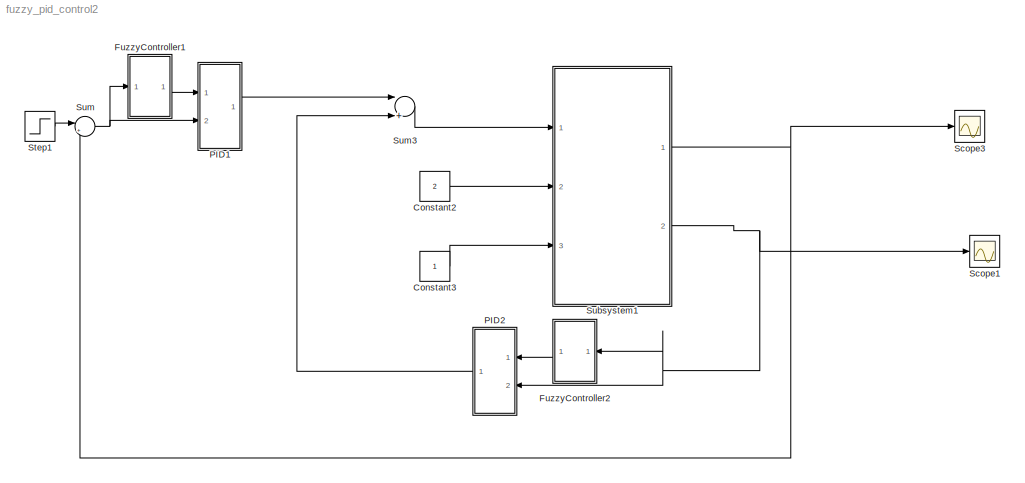
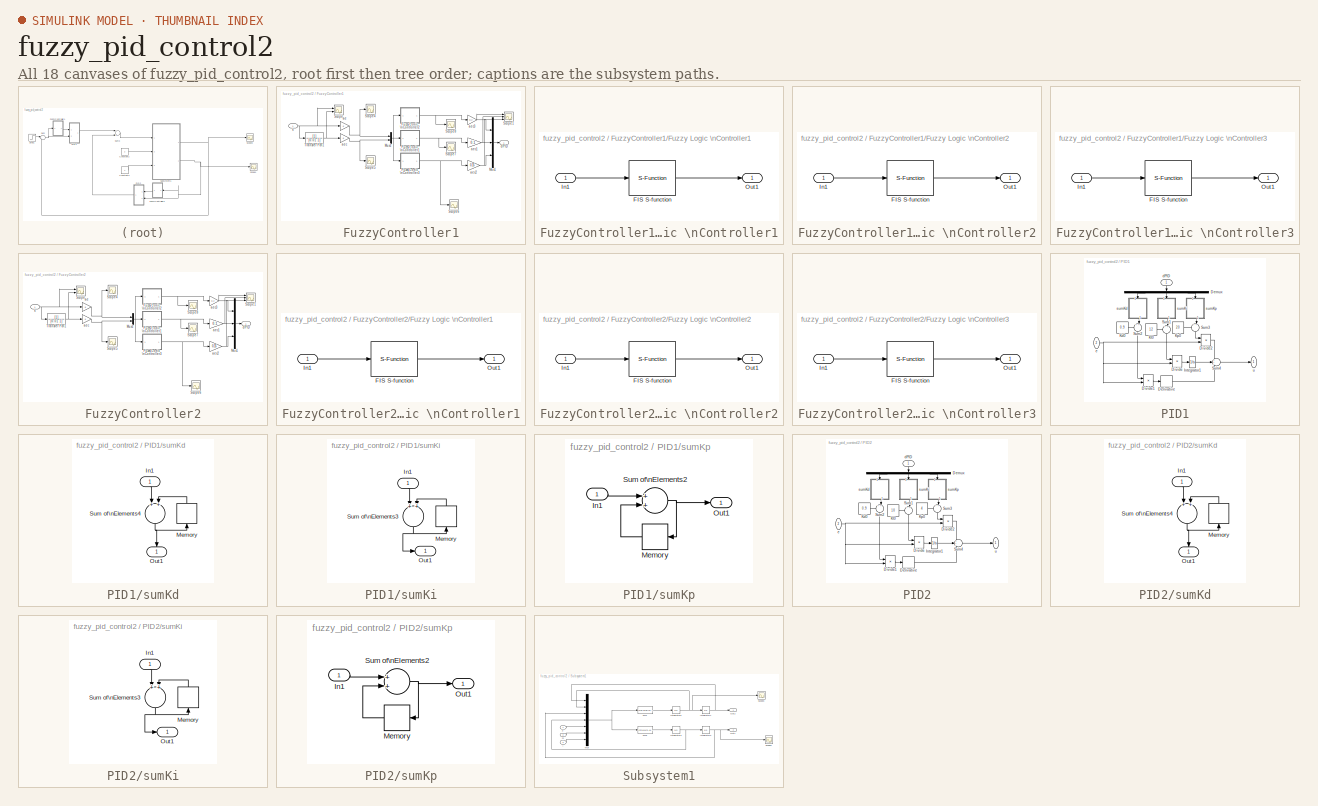
[diagram: thumbnail index - all 18 canvases of the model, root first then tree order]
MODEL fuzzy_pid_control2
KIND model
BLOCK [Constant] Constant2
  SID = 9
  Value = 2
BLOCK [Constant] Constant3
  SID = 10
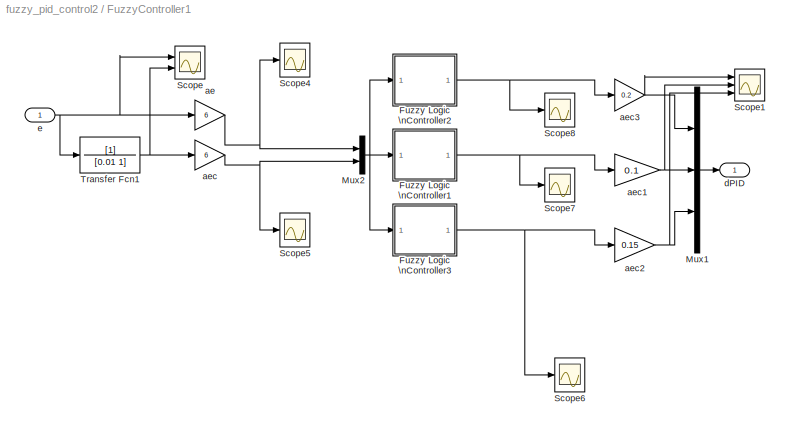
BLOCK [SubSystem] FuzzyController1
  Ports = [1, 1]
  RequestExecContextInheritance = off
  SID = 11
  Variant = off
BLOCK [SubSystem] FuzzyController1/Fuzzy Logic \nController1
  AncestorBlock = fuzblock/Fuzzy Logic \nController
  Ports = [1, 1]
  RequestExecContextInheritance = off
  SID = 13
  Variant = off
BLOCK [S-Function] FuzzyController1/Fuzzy Logic \nController1/FIS S-function
  EnableBusSupport = off
  FunctionName = sffis
  Parameters = fis
  Ports = [1, 1]
  SFunctionDeploymentMode = off
  SFunctionModules = sfsup
  SID = 13:2
BLOCK [Inport] FuzzyController1/Fuzzy Logic \nController1/In1
  IconDisplay = Port number
  SID = 13:1
BLOCK [Outport] FuzzyController1/Fuzzy Logic \nController1/Out1
  IconDisplay = Port number
  SID = 13:3
BLOCK [SubSystem] FuzzyController1/Fuzzy Logic \nController2
  AncestorBlock = fuzblock/Fuzzy Logic \nController
  Ports = [1, 1]
  RequestExecContextInheritance = off
  SID = 14
  Variant = off
BLOCK [S-Function] FuzzyController1/Fuzzy Logic \nController2/FIS S-function
  EnableBusSupport = off
  FunctionName = sffis
  Parameters = fis
  Ports = [1, 1]
  SFunctionDeploymentMode = off
  SFunctionModules = sfsup
  SID = 14:2
BLOCK [Inport] FuzzyController1/Fuzzy Logic \nController2/In1
  IconDisplay = Port number
  SID = 14:1
BLOCK [Outport] FuzzyController1/Fuzzy Logic \nController2/Out1
  IconDisplay = Port number
  SID = 14:3
BLOCK [SubSystem] FuzzyController1/Fuzzy Logic \nController3
  AncestorBlock = fuzblock/Fuzzy Logic \nController
  Ports = [1, 1]
  RequestExecContextInheritance = off
  SID = 15
  Variant = off
BLOCK [S-Function] FuzzyController1/Fuzzy Logic \nController3/FIS S-function
  EnableBusSupport = off
  FunctionName = sffis
  Parameters = fis
  Ports = [1, 1]
  SFunctionDeploymentMode = off
  SFunctionModules = sfsup
  SID = 15:2
BLOCK [Inport] FuzzyController1/Fuzzy Logic \nController3/In1
  IconDisplay = Port number
  SID = 15:1
BLOCK [Outport] FuzzyController1/Fuzzy Logic \nController3/Out1
  IconDisplay = Port number
  SID = 15:3
BLOCK [Mux] FuzzyController1/Mux1
  DisplayOption = bar
  Inputs = 3
  Ports = [3, 1]
  SID = 16
BLOCK [Mux] FuzzyController1/Mux2
  DisplayOption = bar
  Inputs = 2
  Ports = [2, 1]
  SID = 17
BLOCK [Scope] FuzzyController1/Scope
  NumInputPorts = 2
  Ports = [2]
  SID = 18
  ScopeSpecificationString = C++SS(StrPVP('Location','[5, 54, 1029, 746]'),StrPVP('Open','off'),StrPVP('ZoomMode','xonly'),MxPVP('AxesTitles',24,'struct(''axes1'',''%<SignalLabel>'',''axes2'',''%<SignalLabel>'')'),StrPVP('TimeRange','10              '),StrPVP('YMin','-0.0115~-0.012'),StrPVP('YMax','-0.0015~-0.0015'),StrPVP('SaveName','ScopeData10'),StrPVP('DataFormat','StructureWithTime'),StrPVP('LimitDataPoints','off'),StrPV...<+58ch>
BLOCK [Scope] FuzzyController1/Scope1
  NumInputPorts = 3
  Ports = [3]
  SID = 19
  ScopeSpecificationString = C++SS(StrPVP('Location','[1, 50, 1025, 737]'),StrPVP('Open','off'),StrPVP('ZoomMode','xonly'),MxPVP('AxesTitles',24,'struct(''axes1'',''%<SignalLabel>'',''axes2'',''%<SignalLabel>'',''axes3'',''%<SignalLabel>'')'),StrPVP('TimeRange','10'),StrPVP('YMin','-1~-0.5~-0.5'),StrPVP('YMax','1~0.5~0.5'),StrPVP('SaveName','ScopeData1'),StrPVP('DataFormat','StructureWithTime'),StrPVP('LimitDataPoints','off')...<+64ch>
BLOCK [Scope] FuzzyController1/Scope4
  Ports = [1]
  SID = 20
  ScopeSpecificationString = C++SS(StrPVP('Location','[1, 50, 1025, 737]'),StrPVP('Open','off'),StrPVP('ZoomMode','yonly'),MxPVP('AxesTitles',24,'struct(''axes1'',''%<SignalLabel>'')'),StrPVP('TimeRange','10              '),StrPVP('YMin','0.2'),StrPVP('YMax','1.3'),StrPVP('SaveName','ScopeData5'),StrPVP('DataFormat','StructureWithTime'),StrPVP('LimitDataPoints','off'),StrPVP('Decimation','1'),StrPVP('BlockParamSampleInput','o...<+5ch>
BLOCK [Scope] FuzzyController1/Scope5
  Ports = [1]
  SID = 21
  ScopeSpecificationString = C++SS(StrPVP('Location','[430, 92, 866, 334]'),StrPVP('Open','off'),StrPVP('ZoomMode','yonly'),MxPVP('AxesTitles',24,'struct(''axes1'',''%<SignalLabel>'')'),StrPVP('TimeRange','10              '),StrPVP('YMin','0.2'),StrPVP('YMax','1.3'),StrPVP('SaveName','ScopeData6'),StrPVP('DataFormat','StructureWithTime'),StrPVP('LimitDataPoints','off'),StrPVP('Decimation','1'),StrPVP('BlockParamSampleInput','...<+6ch>
BLOCK [Scope] FuzzyController1/Scope6
  Ports = [1]
  SID = 22
  ScopeSpecificationString = C++SS(StrPVP('Location','[1, 50, 1025, 737]'),StrPVP('Open','off'),StrPVP('ZoomMode','yonly'),MxPVP('AxesTitles',24,'struct(''axes1'',''%<SignalLabel>'')'),StrPVP('TimeRange','10              '),StrPVP('YMin','0.2'),StrPVP('YMax','1.3'),StrPVP('SaveName','ScopeData7'),StrPVP('DataFormat','StructureWithTime'),StrPVP('LimitDataPoints','off'),StrPVP('Decimation','1'),StrPVP('BlockParamSampleInput','o...<+5ch>
BLOCK [Scope] FuzzyController1/Scope7
  Ports = [1]
  SID = 23
  ScopeSpecificationString = C++SS(StrPVP('Location','[463, 209, 899, 451]'),StrPVP('Open','off'),StrPVP('ZoomMode','yonly'),MxPVP('AxesTitles',24,'struct(''axes1'',''%<SignalLabel>'')'),StrPVP('TimeRange','10              '),StrPVP('YMin','0.2'),StrPVP('YMax','1.3'),StrPVP('SaveName','ScopeData8'),StrPVP('DataFormat','StructureWithTime'),StrPVP('LimitDataPoints','off'),StrPVP('Decimation','1'),StrPVP('BlockParamSampleInput',...<+7ch>
BLOCK [Scope] FuzzyController1/Scope8
  Ports = [1]
  SID = 24
  ScopeSpecificationString = C++SS(StrPVP('Location','[1, 50, 1025, 737]'),StrPVP('Open','off'),StrPVP('ZoomMode','yonly'),MxPVP('AxesTitles',24,'struct(''axes1'',''%<SignalLabel>'')'),StrPVP('TimeRange','10              '),StrPVP('YMin','0.2'),StrPVP('YMax','1.3'),StrPVP('SaveName','ScopeData9'),StrPVP('DataFormat','StructureWithTime'),StrPVP('LimitDataPoints','off'),StrPVP('Decimation','1'),StrPVP('BlockParamSampleInput','o...<+5ch>
BLOCK [TransferFcn] FuzzyController1/Transfer Fcn1
  Denominator = [0.01 1]
  SID = 25
BLOCK [Gain] FuzzyController1/ae
  Gain = 6
  OutDataTypeStr = Inherit: Inherit via internal rule
  ParamDataTypeStr = Inherit: Inherit via internal rule
  SID = 26
  SaturateOnIntegerOverflow = off
BLOCK [Gain] FuzzyController1/aec
  Gain = 6
  OutDataTypeStr = Inherit: Inherit via internal rule
  ParamDataTypeStr = Inherit: Inherit via internal rule
  SID = 27
  SaturateOnIntegerOverflow = off
BLOCK [Gain] FuzzyController1/aec1
  Gain = 0.1
  OutDataTypeStr = Inherit: Inherit via internal rule
  ParamDataTypeStr = Inherit: Inherit via internal rule
  SID = 28
  SaturateOnIntegerOverflow = off
BLOCK [Gain] FuzzyController1/aec2
  Gain = 0.15
  OutDataTypeStr = Inherit: Inherit via internal rule
  ParamDataTypeStr = Inherit: Inherit via internal rule
  SID = 29
  SaturateOnIntegerOverflow = off
BLOCK [Gain] FuzzyController1/aec3
  Gain = 0.2
  OutDataTypeStr = Inherit: Inherit via internal rule
  ParamDataTypeStr = Inherit: Inherit via internal rule
  SID = 30
  SaturateOnIntegerOverflow = off
BLOCK [Outport] FuzzyController1/dPID
  IconDisplay = Port number
  SID = 31
BLOCK [Inport] FuzzyController1/e
  IconDisplay = Port number
  SID = 12
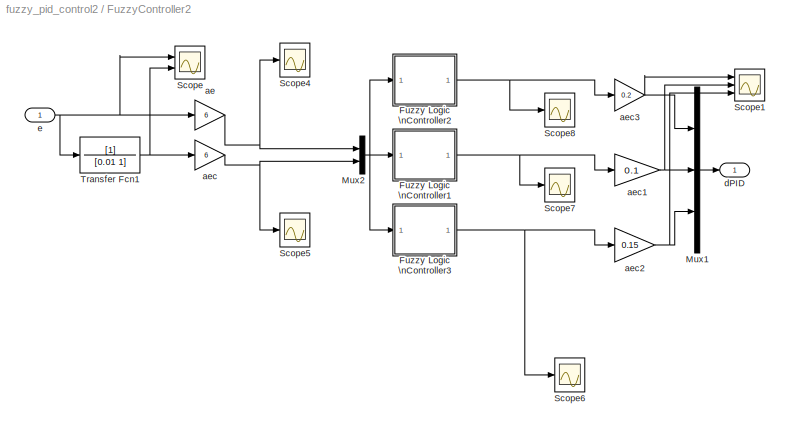
BLOCK [SubSystem] FuzzyController2
  Ports = [1, 1]
  RequestExecContextInheritance = off
  SID = 99
  Variant = off
BLOCK [SubSystem] FuzzyController2/Fuzzy Logic \nController1
  AncestorBlock = fuzblock/Fuzzy Logic \nController
  Ports = [1, 1]
  RequestExecContextInheritance = off
  SID = 101
  Variant = off
BLOCK [S-Function] FuzzyController2/Fuzzy Logic \nController1/FIS S-function
  EnableBusSupport = off
  FunctionName = sffis
  Parameters = fis
  Ports = [1, 1]
  SFunctionDeploymentMode = off
  SFunctionModules = sfsup
  SID = 101:2
BLOCK [Inport] FuzzyController2/Fuzzy Logic \nController1/In1
  IconDisplay = Port number
  SID = 101:1
BLOCK [Outport] FuzzyController2/Fuzzy Logic \nController1/Out1
  IconDisplay = Port number
  SID = 101:3
BLOCK [SubSystem] FuzzyController2/Fuzzy Logic \nController2
  AncestorBlock = fuzblock/Fuzzy Logic \nController
  Ports = [1, 1]
  RequestExecContextInheritance = off
  SID = 102
  Variant = off
BLOCK [S-Function] FuzzyController2/Fuzzy Logic \nController2/FIS S-function
  EnableBusSupport = off
  FunctionName = sffis
  Parameters = fis
  Ports = [1, 1]
  SFunctionDeploymentMode = off
  SFunctionModules = sfsup
  SID = 102:2
BLOCK [Inport] FuzzyController2/Fuzzy Logic \nController2/In1
  IconDisplay = Port number
  SID = 102:1
BLOCK [Outport] FuzzyController2/Fuzzy Logic \nController2/Out1
  IconDisplay = Port number
  SID = 102:3
BLOCK [SubSystem] FuzzyController2/Fuzzy Logic \nController3
  AncestorBlock = fuzblock/Fuzzy Logic \nController
  Ports = [1, 1]
  RequestExecContextInheritance = off
  SID = 103
  Variant = off
BLOCK [S-Function] FuzzyController2/Fuzzy Logic \nController3/FIS S-function
  EnableBusSupport = off
  FunctionName = sffis
  Parameters = fis
  Ports = [1, 1]
  SFunctionDeploymentMode = off
  SFunctionModules = sfsup
  SID = 103:2
BLOCK [Inport] FuzzyController2/Fuzzy Logic \nController3/In1
  IconDisplay = Port number
  SID = 103:1
BLOCK [Outport] FuzzyController2/Fuzzy Logic \nController3/Out1
  IconDisplay = Port number
  SID = 103:3
BLOCK [Mux] FuzzyController2/Mux1
  DisplayOption = bar
  Inputs = 3
  Ports = [3, 1]
  SID = 104
BLOCK [Mux] FuzzyController2/Mux2
  DisplayOption = bar
  Inputs = 2
  Ports = [2, 1]
  SID = 105
BLOCK [Scope] FuzzyController2/Scope
  NumInputPorts = 2
  Ports = [2]
  SID = 106
  ScopeSpecificationString = C++SS(StrPVP('Location','[5, 54, 1029, 746]'),StrPVP('Open','off'),StrPVP('ZoomMode','xonly'),MxPVP('AxesTitles',24,'struct(''axes1'',''%<SignalLabel>'',''axes2'',''%<SignalLabel>'')'),StrPVP('TimeRange','10              '),StrPVP('YMin','-0.0115~-0.012'),StrPVP('YMax','-0.0015~-0.0015'),StrPVP('SaveName','ScopeData10'),StrPVP('DataFormat','StructureWithTime'),StrPVP('LimitDataPoints','off'),StrPV...<+58ch>
BLOCK [Scope] FuzzyController2/Scope1
  NumInputPorts = 3
  Ports = [3]
  SID = 107
  ScopeSpecificationString = C++SS(StrPVP('Location','[1, 50, 1025, 737]'),StrPVP('Open','off'),StrPVP('ZoomMode','xonly'),MxPVP('AxesTitles',24,'struct(''axes1'',''%<SignalLabel>'',''axes2'',''%<SignalLabel>'',''axes3'',''%<SignalLabel>'')'),StrPVP('TimeRange','10'),StrPVP('YMin','-1~-0.5~-0.5'),StrPVP('YMax','1~0.5~0.5'),StrPVP('SaveName','ScopeData1'),StrPVP('DataFormat','StructureWithTime'),StrPVP('LimitDataPoints','off')...<+64ch>
BLOCK [Scope] FuzzyController2/Scope4
  Ports = [1]
  SID = 108
  ScopeSpecificationString = C++SS(StrPVP('Location','[1, 50, 1025, 737]'),StrPVP('Open','off'),StrPVP('ZoomMode','yonly'),MxPVP('AxesTitles',24,'struct(''axes1'',''%<SignalLabel>'')'),StrPVP('TimeRange','10              '),StrPVP('YMin','0.2'),StrPVP('YMax','1.3'),StrPVP('SaveName','ScopeData5'),StrPVP('DataFormat','StructureWithTime'),StrPVP('LimitDataPoints','off'),StrPVP('Decimation','1'),StrPVP('BlockParamSampleInput','o...<+5ch>
BLOCK [Scope] FuzzyController2/Scope5
  Ports = [1]
  SID = 109
  ScopeSpecificationString = C++SS(StrPVP('Location','[430, 92, 866, 334]'),StrPVP('Open','off'),StrPVP('ZoomMode','yonly'),MxPVP('AxesTitles',24,'struct(''axes1'',''%<SignalLabel>'')'),StrPVP('TimeRange','10              '),StrPVP('YMin','0.2'),StrPVP('YMax','1.3'),StrPVP('SaveName','ScopeData6'),StrPVP('DataFormat','StructureWithTime'),StrPVP('LimitDataPoints','off'),StrPVP('Decimation','1'),StrPVP('BlockParamSampleInput','...<+6ch>
BLOCK [Scope] FuzzyController2/Scope6
  Ports = [1]
  SID = 110
  ScopeSpecificationString = C++SS(StrPVP('Location','[1, 50, 1025, 737]'),StrPVP('Open','off'),StrPVP('ZoomMode','yonly'),MxPVP('AxesTitles',24,'struct(''axes1'',''%<SignalLabel>'')'),StrPVP('TimeRange','10              '),StrPVP('YMin','0.2'),StrPVP('YMax','1.3'),StrPVP('SaveName','ScopeData7'),StrPVP('DataFormat','StructureWithTime'),StrPVP('LimitDataPoints','off'),StrPVP('Decimation','1'),StrPVP('BlockParamSampleInput','o...<+5ch>
BLOCK [Scope] FuzzyController2/Scope7
  Ports = [1]
  SID = 111
  ScopeSpecificationString = C++SS(StrPVP('Location','[463, 209, 899, 451]'),StrPVP('Open','off'),StrPVP('ZoomMode','yonly'),MxPVP('AxesTitles',24,'struct(''axes1'',''%<SignalLabel>'')'),StrPVP('TimeRange','10              '),StrPVP('YMin','0.2'),StrPVP('YMax','1.3'),StrPVP('SaveName','ScopeData8'),StrPVP('DataFormat','StructureWithTime'),StrPVP('LimitDataPoints','off'),StrPVP('Decimation','1'),StrPVP('BlockParamSampleInput',...<+7ch>
BLOCK [Scope] FuzzyController2/Scope8
  Ports = [1]
  SID = 112
  ScopeSpecificationString = C++SS(StrPVP('Location','[1, 50, 1025, 737]'),StrPVP('Open','off'),StrPVP('ZoomMode','yonly'),MxPVP('AxesTitles',24,'struct(''axes1'',''%<SignalLabel>'')'),StrPVP('TimeRange','10              '),StrPVP('YMin','0.2'),StrPVP('YMax','1.3'),StrPVP('SaveName','ScopeData9'),StrPVP('DataFormat','StructureWithTime'),StrPVP('LimitDataPoints','off'),StrPVP('Decimation','1'),StrPVP('BlockParamSampleInput','o...<+5ch>
BLOCK [TransferFcn] FuzzyController2/Transfer Fcn1
  Denominator = [0.01 1]
  SID = 113
BLOCK [Gain] FuzzyController2/ae
  Gain = 6
  OutDataTypeStr = Inherit: Inherit via internal rule
  ParamDataTypeStr = Inherit: Inherit via internal rule
  SID = 114
  SaturateOnIntegerOverflow = off
BLOCK [Gain] FuzzyController2/aec
  Gain = 6
  OutDataTypeStr = Inherit: Inherit via internal rule
  ParamDataTypeStr = Inherit: Inherit via internal rule
  SID = 115
  SaturateOnIntegerOverflow = off
BLOCK [Gain] FuzzyController2/aec1
  Gain = 0.1
  OutDataTypeStr = Inherit: Inherit via internal rule
  ParamDataTypeStr = Inherit: Inherit via internal rule
  SID = 116
  SaturateOnIntegerOverflow = off
BLOCK [Gain] FuzzyController2/aec2
  Gain = 0.15
  OutDataTypeStr = Inherit: Inherit via internal rule
  ParamDataTypeStr = Inherit: Inherit via internal rule
  SID = 117
  SaturateOnIntegerOverflow = off
BLOCK [Gain] FuzzyController2/aec3
  Gain = 0.2
  OutDataTypeStr = Inherit: Inherit via internal rule
  ParamDataTypeStr = Inherit: Inherit via internal rule
  SID = 118
  SaturateOnIntegerOverflow = off
BLOCK [Outport] FuzzyController2/dPID
  IconDisplay = Port number
  SID = 119
BLOCK [Inport] FuzzyController2/e
  IconDisplay = Port number
  SID = 100
BLOCK [SubSystem] PID1
  Ports = [2, 1]
  RequestExecContextInheritance = off
  SID = 45
  Variant = off
BLOCK [Demux] PID1/Demux
  DisplayOption = bar
  Outputs = 3
  Ports = [1, 3]
  SID = 48
BLOCK [Derivative] PID1/Derivative
  SID = 49
BLOCK [Product] PID1/Divide
  InputSameDT = off
  Inputs = **
  OutDataTypeStr = Inherit: Inherit via internal rule
  Ports = [2, 1]
  RndMeth = Floor
  SID = 50
  SaturateOnIntegerOverflow = off
BLOCK [Product] PID1/Divide1
  InputSameDT = off
  Inputs = **
  OutDataTypeStr = Inherit: Inherit via internal rule
  Ports = [2, 1]
  RndMeth = Floor
  SID = 51
  SaturateOnIntegerOverflow = off
BLOCK [Product] PID1/Divide2
  InputSameDT = off
  Inputs = **
  OutDataTypeStr = Inherit: Inherit via internal rule
  Ports = [2, 1]
  RndMeth = Floor
  SID = 52
  SaturateOnIntegerOverflow = off
BLOCK [Integrator] PID1/Integrator1
  Ports = [1, 1]
  SID = 53
BLOCK [Constant] PID1/KI0
  SID = 54
  Value = 12
BLOCK [Constant] PID1/Kd0
  SID = 55
  Value = 0.9
BLOCK [Constant] PID1/Kp0
  SID = 56
  Value = 20
BLOCK [Sum] PID1/Sum1
  IconShape = round
  InputSameDT = off
  Inputs = ++|
  OutDataTypeStr = Inherit: Inherit via internal rule
  Ports = [2, 1]
  SID = 57
  SaturateOnIntegerOverflow = off
BLOCK [Sum] PID1/Sum2
  IconShape = round
  InputSameDT = off
  Inputs = ++|
  OutDataTypeStr = Inherit: Inherit via internal rule
  Ports = [2, 1]
  SID = 58
  SaturateOnIntegerOverflow = off
BLOCK [Sum] PID1/Sum3
  IconShape = round
  InputSameDT = off
  Inputs = ++|
  OutDataTypeStr = Inherit: Inherit via internal rule
  Ports = [2, 1]
  SID = 59
  SaturateOnIntegerOverflow = off
BLOCK [Sum] PID1/Sum4
  IconShape = round
  InputSameDT = off
  Inputs = +++
  OutDataTypeStr = Inherit: Inherit via internal rule
  Ports = [3, 1]
  SID = 60
  SaturateOnIntegerOverflow = off
BLOCK [Inport] PID1/dPID
  IconDisplay = Port number
  SID = 46
BLOCK [Inport] PID1/e
  IconDisplay = Port number
  Port = 2
  SID = 47
BLOCK [SubSystem] PID1/sumKd
  Ports = [1, 1]
  RequestExecContextInheritance = off
  SID = 61
  Variant = off
BLOCK [Inport] PID1/sumKd/In1
  IconDisplay = Port number
  SID = 62
BLOCK [Memory] PID1/sumKd/Memory
  InheritSampleTime = on
  SID = 63
BLOCK [Outport] PID1/sumKd/Out1
  IconDisplay = Port number
  SID = 65
BLOCK [Sum] PID1/sumKd/Sum of\nElements4
  InputSameDT = off
  OutDataTypeStr = Inherit: Inherit via internal rule
  Ports = [2, 1]
  SID = 64
  SampleTime = 0.001
  SaturateOnIntegerOverflow = off
BLOCK [SubSystem] PID1/sumKi
  Ports = [1, 1]
  RequestExecContextInheritance = off
  SID = 66
  Variant = off
BLOCK [Inport] PID1/sumKi/In1
  IconDisplay = Port number
  SID = 67
BLOCK [Memory] PID1/sumKi/Memory
  InheritSampleTime = on
  SID = 68
BLOCK [Outport] PID1/sumKi/Out1
  IconDisplay = Port number
  SID = 70
BLOCK [Sum] PID1/sumKi/Sum of\nElements3
  InputSameDT = off
  OutDataTypeStr = Inherit: Inherit via internal rule
  Ports = [2, 1]
  SID = 69
  SampleTime = 0.001
  SaturateOnIntegerOverflow = off
BLOCK [SubSystem] PID1/sumKp
  Ports = [1, 1]
  RequestExecContextInheritance = off
  SID = 71
  Variant = off
BLOCK [Inport] PID1/sumKp/In1
  IconDisplay = Port number
  SID = 72
BLOCK [Memory] PID1/sumKp/Memory
  InheritSampleTime = on
  SID = 73
BLOCK [Outport] PID1/sumKp/Out1
  IconDisplay = Port number
  SID = 75
BLOCK [Sum] PID1/sumKp/Sum of\nElements2
  InputSameDT = off
  OutDataTypeStr = Inherit: Inherit via internal rule
  Ports = [2, 1]
  SID = 74
  SampleTime = 0.001
  SaturateOnIntegerOverflow = off
BLOCK [Outport] PID1/u
  IconDisplay = Port number
  SID = 76
BLOCK [SubSystem] PID2
  Ports = [2, 1]
  RequestExecContextInheritance = off
  SID = 120
  Variant = off
BLOCK [Demux] PID2/Demux
  DisplayOption = bar
  Outputs = 3
  Ports = [1, 3]
  SID = 123
BLOCK [Derivative] PID2/Derivative
  SID = 124
BLOCK [Product] PID2/Divide
  InputSameDT = off
  Inputs = **
  OutDataTypeStr = Inherit: Inherit via internal rule
  Ports = [2, 1]
  RndMeth = Floor
  SID = 125
  SaturateOnIntegerOverflow = off
BLOCK [Product] PID2/Divide1
  InputSameDT = off
  Inputs = **
  OutDataTypeStr = Inherit: Inherit via internal rule
  Ports = [2, 1]
  RndMeth = Floor
  SID = 126
  SaturateOnIntegerOverflow = off
BLOCK [Product] PID2/Divide2
  InputSameDT = off
  Inputs = **
  OutDataTypeStr = Inherit: Inherit via internal rule
  Ports = [2, 1]
  RndMeth = Floor
  SID = 127
  SaturateOnIntegerOverflow = off
BLOCK [Integrator] PID2/Integrator1
  Ports = [1, 1]
  SID = 128
BLOCK [Constant] PID2/KI0
  SID = 129
  Value = 10
BLOCK [Constant] PID2/Kd0
  SID = 130
  Value = 0.9
BLOCK [Constant] PID2/Kp0
  SID = 131
  Value = 4
BLOCK [Sum] PID2/Sum1
  IconShape = round
  InputSameDT = off
  Inputs = ++|
  OutDataTypeStr = Inherit: Inherit via internal rule
  Ports = [2, 1]
  SID = 132
  SaturateOnIntegerOverflow = off
BLOCK [Sum] PID2/Sum2
  IconShape = round
  InputSameDT = off
  Inputs = ++|
  OutDataTypeStr = Inherit: Inherit via internal rule
  Ports = [2, 1]
  SID = 133
  SaturateOnIntegerOverflow = off
BLOCK [Sum] PID2/Sum3
  IconShape = round
  InputSameDT = off
  Inputs = ++|
  OutDataTypeStr = Inherit: Inherit via internal rule
  Ports = [2, 1]
  SID = 134
  SaturateOnIntegerOverflow = off
BLOCK [Sum] PID2/Sum4
  IconShape = round
  InputSameDT = off
  Inputs = +++
  OutDataTypeStr = Inherit: Inherit via internal rule
  Ports = [3, 1]
  SID = 135
  SaturateOnIntegerOverflow = off
BLOCK [Inport] PID2/dPID
  IconDisplay = Port number
  SID = 121
BLOCK [Inport] PID2/e
  IconDisplay = Port number
  Port = 2
  SID = 122
BLOCK [SubSystem] PID2/sumKd
  Ports = [1, 1]
  RequestExecContextInheritance = off
  SID = 136
  Variant = off
BLOCK [Inport] PID2/sumKd/In1
  IconDisplay = Port number
  SID = 137
BLOCK [Memory] PID2/sumKd/Memory
  InheritSampleTime = on
  SID = 138
BLOCK [Outport] PID2/sumKd/Out1
  IconDisplay = Port number
  SID = 140
BLOCK [Sum] PID2/sumKd/Sum of\nElements4
  InputSameDT = off
  OutDataTypeStr = Inherit: Inherit via internal rule
  Ports = [2, 1]
  SID = 139
  SampleTime = 0.001
  SaturateOnIntegerOverflow = off
BLOCK [SubSystem] PID2/sumKi
  Ports = [1, 1]
  RequestExecContextInheritance = off
  SID = 141
  Variant = off
BLOCK [Inport] PID2/sumKi/In1
  IconDisplay = Port number
  SID = 142
BLOCK [Memory] PID2/sumKi/Memory
  InheritSampleTime = on
  SID = 143
BLOCK [Outport] PID2/sumKi/Out1
  IconDisplay = Port number
  SID = 145
BLOCK [Sum] PID2/sumKi/Sum of\nElements3
  InputSameDT = off
  OutDataTypeStr = Inherit: Inherit via internal rule
  Ports = [2, 1]
  SID = 144
  SampleTime = 0.001
  SaturateOnIntegerOverflow = off
BLOCK [SubSystem] PID2/sumKp
  Ports = [1, 1]
  RequestExecContextInheritance = off
  SID = 146
  Variant = off
BLOCK [Inport] PID2/sumKp/In1
  IconDisplay = Port number
  SID = 147
BLOCK [Memory] PID2/sumKp/Memory
  InheritSampleTime = on
  SID = 148
BLOCK [Outport] PID2/sumKp/Out1
  IconDisplay = Port number
  SID = 150
BLOCK [Sum] PID2/sumKp/Sum of\nElements2
  InputSameDT = off
  OutDataTypeStr = Inherit: Inherit via internal rule
  Ports = [2, 1]
  SID = 149
  SampleTime = 0.001
  SaturateOnIntegerOverflow = off
BLOCK [Outport] PID2/u
  IconDisplay = Port number
  SID = 151
BLOCK [Scope] Scope1
  Ports = [1]
  SID = 77
  ScopeSpecificationString = Simulink.scopes.TimeScopeBlockCfg('CurrentConfiguration', extmgr.ConfigurationSet(extmgr.Configuration('Core','General UI',true,'FigureColor',[1 1 1]),extmgr.Configuration('Core','Source UI',true),extmgr.Configuration('Sources','WiredSimulink',true,'DataLoggingVariableName','ScopeData3','DataLoggingLimitDataPoints',true,'DataLoggingSaveFormat','Array','DataLoggingDecimation','1','DataLoggingDecima...<+1720ch>
BLOCK [Scope] Scope3
  Ports = [1]
  SID = 78
  ScopeSpecificationString = Simulink.scopes.TimeScopeBlockCfg('CurrentConfiguration', extmgr.ConfigurationSet(extmgr.Configuration('Core','General UI',true),extmgr.Configuration('Core','Source UI',true),extmgr.Configuration('Sources','WiredSimulink',true,'DataLoggingVariableName','ScopeData1'),extmgr.Configuration('Visuals','Time Domain',true,'SerializedDisplays',{struct('MinYLimReal','-0.14858','MaxYLimReal','1.33719','YLab...<+1398ch>
BLOCK [Step] Step1
  SID = 79
  SampleTime = 0
  Time = 0
BLOCK [SubSystem] Subsystem1
  Ports = [3, 2]
  RequestExecContextInheritance = off
  SID = 80
  Variant = off
BLOCK [Inport] Subsystem1/F
  IconDisplay = Port number
  SID = 81
BLOCK [Fcn] Subsystem1/Fcn1
  Expr = (u(5)+u(6)*u(7)*u(4)*u(4)*sin(u(3))+9.8*u(6)*sin(u(3))-miu*u(2))/(M+u(6)-u(6)*cos(u(3)))
  SID = 84
BLOCK [Fcn] Subsystem1/Fcn3
  Expr = ((miu*u(2)-u(5))*u(7)*cos(u(3))-(u(7)*u(7)*u(4)*u(4)+9.8*u(7)*9.8)*u(6)*sin(u(3))*cos(u(3))-(M+u(6))*9.8*sin(u(3)))/((M+u(6)-u(6)*cos(u(3)))*u(7))
  SID = 85
BLOCK [Integrator] Subsystem1/Integrator1
  Ports = [1, 1]
  SID = 86
BLOCK [Integrator] Subsystem1/Integrator2
  Ports = [1, 1]
  SID = 87
BLOCK [Integrator] Subsystem1/Integrator3
  Ports = [1, 1]
  SID = 88
BLOCK [Integrator] Subsystem1/Integrator5
  Ports = [1, 1]
  SID = 89
BLOCK [Mux] Subsystem1/Mux
  DisplayOption = bar
  Inputs = 7
  Ports = [7, 1]
  SID = 90
BLOCK [Outport] Subsystem1/Out1
  IconDisplay = Port number
  Port = 2
  SID = 94
BLOCK [Outport] Subsystem1/Out2
  IconDisplay = Port number
  SID = 93
BLOCK [Scope] Subsystem1/Scope1
  Ports = [1]
  SID = 91
  ScopeSpecificationString = Simulink.scopes.TimeScopeBlockCfg('CurrentConfiguration', extmgr.ConfigurationSet(extmgr.Configuration('Core','General UI',true),extmgr.Configuration('Core','Source UI',true),extmgr.Configuration('Sources','WiredSimulink',true,'DataLoggingVariableName','ScopeData2','DataLoggingSaveFormat','StructureWithTime','DataLoggingDecimation','1','DataLoggingDecimateData',true),extmgr.Configuration('Visuals'...<+1648ch>
BLOCK [Scope] Subsystem1/Scope3
  Ports = [1]
  SID = 92
  ScopeSpecificationString = Simulink.scopes.TimeScopeBlockCfg('CurrentConfiguration', extmgr.ConfigurationSet(extmgr.Configuration('Core','General UI',true),extmgr.Configuration('Core','Source UI',true),extmgr.Configuration('Sources','WiredSimulink',true,'DataLoggingVariableName','ScopeData1','DataLoggingSaveFormat','StructureWithTime','DataLoggingDecimation','1','DataLoggingDecimateData',true),extmgr.Configuration('Visuals'...<+1732ch>
BLOCK [Inport] Subsystem1/l
  IconDisplay = Port number
  Port = 3
  SID = 83
BLOCK [Inport] Subsystem1/m
  IconDisplay = Port number
  Port = 2
  SID = 82
BLOCK [Sum] Sum
  IconShape = round
  InputSameDT = off
  Inputs = |+-
  OutDataTypeStr = Inherit: Inherit via internal rule
  Ports = [2, 1]
  SID = 95
  SaturateOnIntegerOverflow = off
BLOCK [Sum] Sum3
  InputSameDT = off
  Inputs = |++
  OutDataTypeStr = Inherit: Inherit via internal rule
  Ports = [2, 1]
  SID = 96
  SaturateOnIntegerOverflow = off
LINE Constant2:1 -> Subsystem1:2
LINE Constant3:1 -> Subsystem1:3
LINE FuzzyController1/Fuzzy Logic \nController1/FIS S-function:1 -> FuzzyController1/Fuzzy Logic \nController1/Out1:1
LINE FuzzyController1/Fuzzy Logic \nController1/In1:1 -> FuzzyController1/Fuzzy Logic \nController1/FIS S-function:1
NET FuzzyController1/Fuzzy Logic \nController1:1 -> FuzzyController1/Scope7:1, FuzzyController1/aec1:1
LINE FuzzyController1/Fuzzy Logic \nController2/FIS S-function:1 -> FuzzyController1/Fuzzy Logic \nController2/Out1:1
LINE FuzzyController1/Fuzzy Logic \nController2/In1:1 -> FuzzyController1/Fuzzy Logic \nController2/FIS S-function:1
NET FuzzyController1/Fuzzy Logic \nController2:1 -> FuzzyController1/Scope8:1, FuzzyController1/aec3:1
LINE FuzzyController1/Fuzzy Logic \nController3/FIS S-function:1 -> FuzzyController1/Fuzzy Logic \nController3/Out1:1
LINE FuzzyController1/Fuzzy Logic \nController3/In1:1 -> FuzzyController1/Fuzzy Logic \nController3/FIS S-function:1
NET FuzzyController1/Fuzzy Logic \nController3:1 -> FuzzyController1/Scope6:1, FuzzyController1/aec2:1
LINE FuzzyController1/Mux1:1 -> FuzzyController1/dPID:1
NET FuzzyController1/Mux2:1 -> FuzzyController1/Fuzzy Logic \nController1:1, FuzzyController1/Fuzzy Logic \nController2:1, FuzzyController1/Fuzzy Logic \nController3:1
NET FuzzyController1/Transfer Fcn1:1 -> FuzzyController1/Scope:2, FuzzyController1/aec:1
NET FuzzyController1/ae:1 -> FuzzyController1/Mux2:1, FuzzyController1/Scope4:1
NET FuzzyController1/aec1:1 -> FuzzyController1/Mux1:2, FuzzyController1/Scope1:2
NET FuzzyController1/aec2:1 -> FuzzyController1/Mux1:3, FuzzyController1/Scope1:3
NET FuzzyController1/aec3:1 -> FuzzyController1/Mux1:1, FuzzyController1/Scope1:1
NET FuzzyController1/aec:1 -> FuzzyController1/Mux2:2, FuzzyController1/Scope5:1
NET FuzzyController1/e:1 -> FuzzyController1/Scope:1, FuzzyController1/Transfer Fcn1:1, FuzzyController1/ae:1
LINE FuzzyController1:1 -> PID1:1
LINE FuzzyController2/Fuzzy Logic \nController1/FIS S-function:1 -> FuzzyController2/Fuzzy Logic \nController1/Out1:1
LINE FuzzyController2/Fuzzy Logic \nController1/In1:1 -> FuzzyController2/Fuzzy Logic \nController1/FIS S-function:1
NET FuzzyController2/Fuzzy Logic \nController1:1 -> FuzzyController2/Scope7:1, FuzzyController2/aec1:1
LINE FuzzyController2/Fuzzy Logic \nController2/FIS S-function:1 -> FuzzyController2/Fuzzy Logic \nController2/Out1:1
LINE FuzzyController2/Fuzzy Logic \nController2/In1:1 -> FuzzyController2/Fuzzy Logic \nController2/FIS S-function:1
NET FuzzyController2/Fuzzy Logic \nController2:1 -> FuzzyController2/Scope8:1, FuzzyController2/aec3:1
LINE FuzzyController2/Fuzzy Logic \nController3/FIS S-function:1 -> FuzzyController2/Fuzzy Logic \nController3/Out1:1
LINE FuzzyController2/Fuzzy Logic \nController3/In1:1 -> FuzzyController2/Fuzzy Logic \nController3/FIS S-function:1
NET FuzzyController2/Fuzzy Logic \nController3:1 -> FuzzyController2/Scope6:1, FuzzyController2/aec2:1
LINE FuzzyController2/Mux1:1 -> FuzzyController2/dPID:1
NET FuzzyController2/Mux2:1 -> FuzzyController2/Fuzzy Logic \nController1:1, FuzzyController2/Fuzzy Logic \nController2:1, FuzzyController2/Fuzzy Logic \nController3:1
NET FuzzyController2/Transfer Fcn1:1 -> FuzzyController2/Scope:2, FuzzyController2/aec:1
NET FuzzyController2/ae:1 -> FuzzyController2/Mux2:1, FuzzyController2/Scope4:1
NET FuzzyController2/aec1:1 -> FuzzyController2/Mux1:2, FuzzyController2/Scope1:2
NET FuzzyController2/aec2:1 -> FuzzyController2/Mux1:3, FuzzyController2/Scope1:3
NET FuzzyController2/aec3:1 -> FuzzyController2/Mux1:1, FuzzyController2/Scope1:1
NET FuzzyController2/aec:1 -> FuzzyController2/Mux2:2, FuzzyController2/Scope5:1
NET FuzzyController2/e:1 -> FuzzyController2/Scope:1, FuzzyController2/Transfer Fcn1:1, FuzzyController2/ae:1
LINE FuzzyController2:1 -> PID2:1
LINE PID1/Demux:1 -> PID1/sumKd:1
LINE PID1/Demux:2 -> PID1/sumKi:1
LINE PID1/Demux:3 -> PID1/sumKp:1
LINE PID1/Derivative:1 -> PID1/Sum4:3
LINE PID1/Divide1:1 -> PID1/Derivative:1
LINE PID1/Divide2:1 -> PID1/Sum4:1
LINE PID1/Divide:1 -> PID1/Integrator1:1
LINE PID1/Integrator1:1 -> PID1/Sum4:2
LINE PID1/KI0:1 -> PID1/Sum1:1
LINE PID1/Kd0:1 -> PID1/Sum2:1
LINE PID1/Kp0:1 -> PID1/Sum3:1
LINE PID1/Sum1:1 -> PID1/Divide:1
LINE PID1/Sum2:1 -> PID1/Divide1:1
LINE PID1/Sum3:1 -> PID1/Divide2:1
LINE PID1/Sum4:1 -> PID1/u:1
LINE PID1/dPID:1 -> PID1/Demux:1
NET PID1/e:1 -> PID1/Divide1:2, PID1/Divide2:2, PID1/Divide:2
LINE PID1/sumKd/In1:1 -> PID1/sumKd/Sum of\nElements4:1
LINE PID1/sumKd/Memory:1 -> PID1/sumKd/Sum of\nElements4:2
NET PID1/sumKd/Sum of\nElements4:1 -> PID1/sumKd/Memory:1, PID1/sumKd/Out1:1
LINE PID1/sumKd:1 -> PID1/Sum2:2
LINE PID1/sumKi/In1:1 -> PID1/sumKi/Sum of\nElements3:1
LINE PID1/sumKi/Memory:1 -> PID1/sumKi/Sum of\nElements3:2
NET PID1/sumKi/Sum of\nElements3:1 -> PID1/sumKi/Memory:1, PID1/sumKi/Out1:1
LINE PID1/sumKi:1 -> PID1/Sum1:2
LINE PID1/sumKp/In1:1 -> PID1/sumKp/Sum of\nElements2:1
LINE PID1/sumKp/Memory:1 -> PID1/sumKp/Sum of\nElements2:2
NET PID1/sumKp/Sum of\nElements2:1 -> PID1/sumKp/Memory:1, PID1/sumKp/Out1:1
LINE PID1/sumKp:1 -> PID1/Sum3:2
LINE PID1:1 -> Sum3:1
LINE PID2/Demux:1 -> PID2/sumKd:1
LINE PID2/Demux:2 -> PID2/sumKi:1
LINE PID2/Demux:3 -> PID2/sumKp:1
LINE PID2/Derivative:1 -> PID2/Sum4:3
LINE PID2/Divide1:1 -> PID2/Derivative:1
LINE PID2/Divide2:1 -> PID2/Sum4:1
LINE PID2/Divide:1 -> PID2/Integrator1:1
LINE PID2/Integrator1:1 -> PID2/Sum4:2
LINE PID2/KI0:1 -> PID2/Sum1:1
LINE PID2/Kd0:1 -> PID2/Sum2:1
LINE PID2/Kp0:1 -> PID2/Sum3:1
LINE PID2/Sum1:1 -> PID2/Divide:1
LINE PID2/Sum2:1 -> PID2/Divide1:1
LINE PID2/Sum3:1 -> PID2/Divide2:1
LINE PID2/Sum4:1 -> PID2/u:1
LINE PID2/dPID:1 -> PID2/Demux:1
NET PID2/e:1 -> PID2/Divide1:2, PID2/Divide2:2, PID2/Divide:2
LINE PID2/sumKd/In1:1 -> PID2/sumKd/Sum of\nElements4:1
LINE PID2/sumKd/Memory:1 -> PID2/sumKd/Sum of\nElements4:2
NET PID2/sumKd/Sum of\nElements4:1 -> PID2/sumKd/Memory:1, PID2/sumKd/Out1:1
LINE PID2/sumKd:1 -> PID2/Sum2:2
LINE PID2/sumKi/In1:1 -> PID2/sumKi/Sum of\nElements3:1
LINE PID2/sumKi/Memory:1 -> PID2/sumKi/Sum of\nElements3:2
NET PID2/sumKi/Sum of\nElements3:1 -> PID2/sumKi/Memory:1, PID2/sumKi/Out1:1
LINE PID2/sumKi:1 -> PID2/Sum1:2
LINE PID2/sumKp/In1:1 -> PID2/sumKp/Sum of\nElements2:1
LINE PID2/sumKp/Memory:1 -> PID2/sumKp/Sum of\nElements2:2
NET PID2/sumKp/Sum of\nElements2:1 -> PID2/sumKp/Memory:1, PID2/sumKp/Out1:1
LINE PID2/sumKp:1 -> PID2/Sum3:2
LINE PID2:1 -> Sum3:2
LINE Step1:1 -> Sum:1
LINE Subsystem1/F:1 -> Subsystem1/Mux:5
LINE Subsystem1/Fcn1:1 -> Subsystem1/Integrator5:1
LINE Subsystem1/Fcn3:1 -> Subsystem1/Integrator3:1
NET Subsystem1/Integrator1:1 -> Subsystem1/Mux:1, Subsystem1/Out2:1
NET Subsystem1/Integrator2:1 -> Subsystem1/Mux:3, Subsystem1/Out1:1, Subsystem1/Scope1:1
NET Subsystem1/Integrator3:1 -> Subsystem1/Integrator2:1, Subsystem1/Mux:4
NET Subsystem1/Integrator5:1 -> Subsystem1/Integrator1:1, Subsystem1/Mux:2, Subsystem1/Scope3:1
NET Subsystem1/Mux:1 -> Subsystem1/Fcn1:1, Subsystem1/Fcn3:1
LINE Subsystem1/l:1 -> Subsystem1/Mux:7
LINE Subsystem1/m:1 -> Subsystem1/Mux:6
NET Subsystem1:1 -> Scope3:1, Sum:2
NET Subsystem1:2 -> FuzzyController2:1, PID2:2, Scope1:1
LINE Sum3:1 -> Subsystem1:1
NET Sum:1 -> FuzzyController1:1, PID1:2
note: NET lines group one-source signal fan-out (src -> all destinations, sorted); 1:1 wires keep LINE
